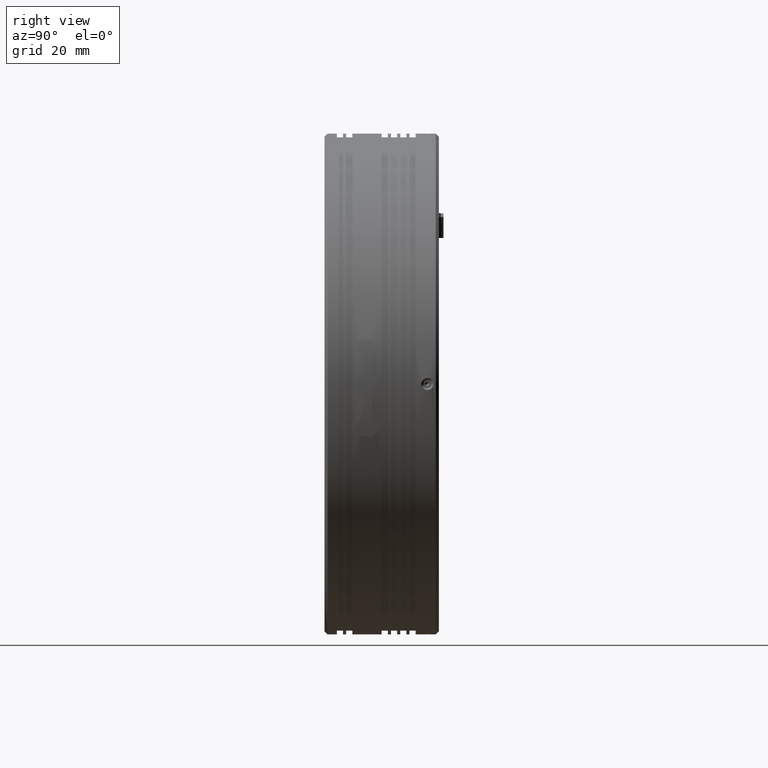
[diagram: clean part render]
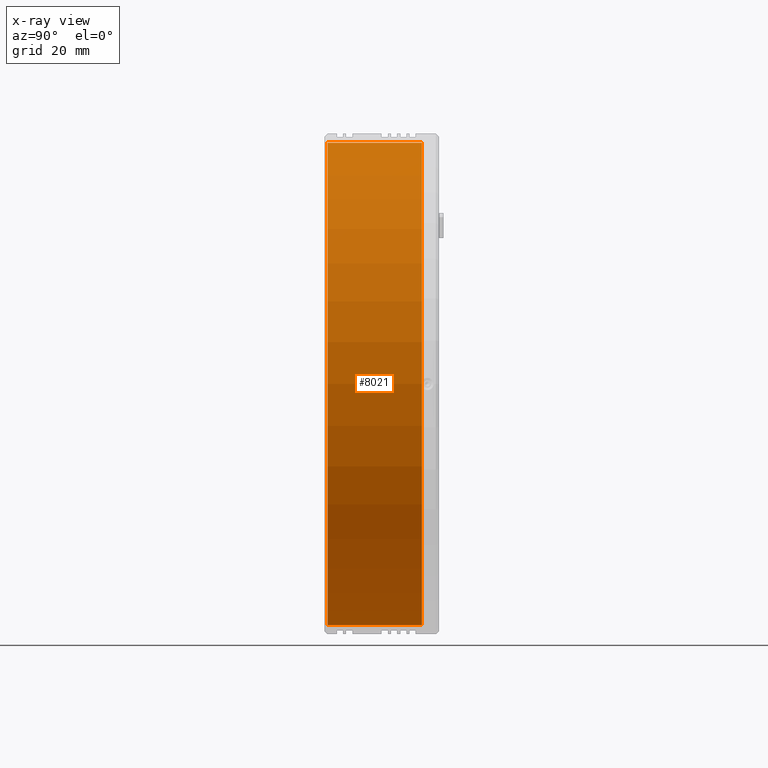
[diagram: x-ray — body ghosted, one internal face saturated and labeled with its STEP entity id]
A machine part, right view, then the same camera in x-ray: the body is ghosted and one INTERNAL B-rep face — a face not visible from any outside direction — is saturated and labeled: STEP entity #8021.
In plain terms, the highlighted cylindrical surface (partial cylindrical patch) has radius 78 mm, axis along (-0, -1, -0).
Its self-contained STEP definition (entity closure, byte-faithful):
#118 = ORIENTED_EDGE ( 'NONE', *, *, #2465, .F. ) ;
#925 = EDGE_LOOP ( 'NONE', ( #10305, #118, #4007, #2322 ) ) ;
#1255 = CIRCLE ( 'NONE', #5471, 78.00000000000000000 ) ;
#1817 = VECTOR ( 'NONE', #11542, 1000.000000000000000 ) ;
#2322 = ORIENTED_EDGE ( 'NONE', *, *, #9096, .F. ) ;
#2465 = EDGE_CURVE ( 'NONE', #8266, #8225, #9252, .T. ) ;
#2824 = EDGE_CURVE ( 'NONE', #8225, #10325, #10302, .T. ) ;
#3025 = FACE_OUTER_BOUND ( 'NONE', #925, .T. ) ;
#3346 = AXIS2_PLACEMENT_3D ( 'NONE', #10581, #10815, #10348 ) ;
#3489 = EDGE_CURVE ( 'NONE', #8266, #10893, #11491, .T. ) ;
#3970 = CARTESIAN_POINT ( 'NONE',  ( -9.785022266880036000, 22.37111437184006500, -78.00000000000000000 ) ) ;
#4007 = ORIENTED_EDGE ( 'NONE', *, *, #3489, .T. ) ;
#5335 = CARTESIAN_POINT ( 'NONE',  ( -9.785022266880025300, 22.37111437184006500, 78.00000000000000000 ) ) ;
#5471 = AXIS2_PLACEMENT_3D ( 'NONE', #11116, #11101, #11070 ) ;
#5948 = DIRECTION ( 'NONE',  ( -0.0000000000000000000, -1.000000000000000000, -0.0000000000000000000 ) ) ;
#5986 = CARTESIAN_POINT ( 'NONE',  ( -9.785022266880036000, -37.73097191106735000, -78.00000000000000000 ) ) ;
#6302 = VECTOR ( 'NONE', #5948, 1000.000000000000000 ) ;
#8021 = ADVANCED_FACE ( 'NONE', ( #3025 ), #8345, .F. ) ;
#8225 = VERTEX_POINT ( 'NONE', #5335 ) ;
#8266 = VERTEX_POINT ( 'NONE', #3970 ) ;
#8345 = CYLINDRICAL_SURFACE ( 'NONE', #3346, 78.00000000000000000 ) ;
#8921 = AXIS2_PLACEMENT_3D ( 'NONE', #11598, #11637, #11676 ) ;
#9096 = EDGE_CURVE ( 'NONE', #10325, #10893, #1255, .T. ) ;
#9252 = CIRCLE ( 'NONE', #8921, 78.00000000000000000 ) ;
#9337 = CARTESIAN_POINT ( 'NONE',  ( -9.785022266880025300, -8.128885628159936900, 78.00000000000000000 ) ) ;
#9356 = CARTESIAN_POINT ( 'NONE',  ( -9.785022266880036000, -8.128885628159936900, -78.00000000000000000 ) ) ;
#10302 = LINE ( 'NONE', #11795, #1817 ) ;
#10305 = ORIENTED_EDGE ( 'NONE', *, *, #2824, .F. ) ;
#10325 = VERTEX_POINT ( 'NONE', #9337 ) ;
#10348 = DIRECTION ( 'NONE',  ( 0.0000000000000000000, 0.0000000000000000000, -1.000000000000000000 ) ) ;
#10581 = CARTESIAN_POINT ( 'NONE',  ( -9.785022266880036000, -37.73097191106735000, 0.0000000000000000000 ) ) ;
#10815 = DIRECTION ( 'NONE',  ( -0.0000000000000000000, -1.000000000000000000, -0.0000000000000000000 ) ) ;
#10893 = VERTEX_POINT ( 'NONE', #9356 ) ;
#11070 = DIRECTION ( 'NONE',  ( 0.0000000000000000000, 0.0000000000000000000, -1.000000000000000000 ) ) ;
#11101 = DIRECTION ( 'NONE',  ( 0.0000000000000000000, 1.000000000000000000, 0.0000000000000000000 ) ) ;
#11116 = CARTESIAN_POINT ( 'NONE',  ( -9.785022266880036000, -8.128885628159936900, 0.0000000000000000000 ) ) ;
#11491 = LINE ( 'NONE', #5986, #6302 ) ;
#11542 = DIRECTION ( 'NONE',  ( -0.0000000000000000000, -1.000000000000000000, -0.0000000000000000000 ) ) ;
#11598 = CARTESIAN_POINT ( 'NONE',  ( -9.785022266880036000, 22.37111437184006500, 0.0000000000000000000 ) ) ;
#11637 = DIRECTION ( 'NONE',  ( -0.0000000000000000000, -1.000000000000000000, -0.0000000000000000000 ) ) ;
#11676 = DIRECTION ( 'NONE',  ( 0.0000000000000000000, 0.0000000000000000000, -1.000000000000000000 ) ) ;
#11795 = CARTESIAN_POINT ( 'NONE',  ( -9.785022266880025300, -37.73097191106735000, 78.00000000000000000 ) ) ;